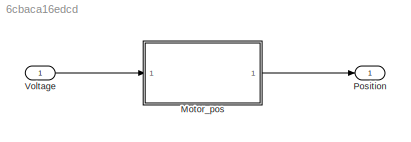
MODEL slx_6cbaca16edcd
KIND model
CONFIG AbsTol = auto
CONFIG EnableMultiTasking = off
CONFIG FixedStep = auto
CONFIG MaxStep = auto
CONFIG MinStep = auto
CONFIG PostLoadFcn = J=3.2284E-6;\nb=3.5077E-6;\nKe=0.0274;\nKt=0.0274;\nR=4;\nL=2.75E-6;
CONFIG RelTol = 1e-3
CONFIG SampleTimeConstraint = Unconstrained
CONFIG SolverName = ode45
CONFIG StartTime = 0.0
CONFIG StopTime = 10.0
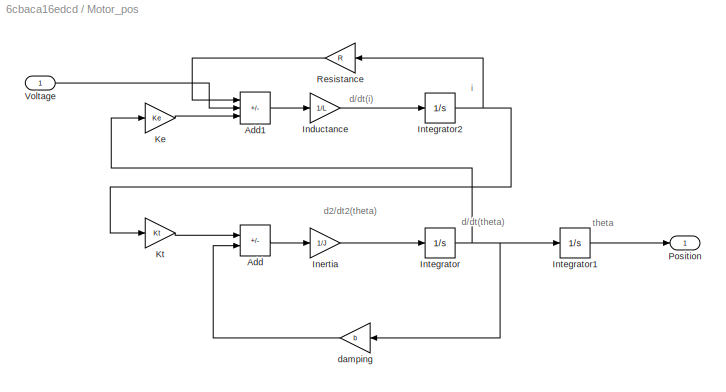
BLOCK [SubSystem] Motor_pos
  Ports = [1, 1]
  RequestExecContextInheritance = off
BLOCK [Sum] Motor_pos/Add
  IconShape = rectangular
  Inputs = +-
  Ports = [2, 1]
BLOCK [Sum] Motor_pos/Add1
  IconShape = rectangular
  Inputs = -+-
  Ports = [3, 1]
BLOCK [Gain] Motor_pos/Inductance
  Gain = 1/L
BLOCK [Gain] Motor_pos/Inertia
  Gain = 1/J
BLOCK [Integrator] Motor_pos/Integrator
  Ports = [1, 1]
BLOCK [Integrator] Motor_pos/Integrator1
  Ports = [1, 1]
BLOCK [Integrator] Motor_pos/Integrator2
  Ports = [1, 1]
BLOCK [Gain] Motor_pos/Ke
  Gain = Ke
BLOCK [Gain] Motor_pos/Kt
  Gain = Kt
BLOCK [Outport] Motor_pos/Position
BLOCK [Gain] Motor_pos/Resistance
  Gain = R
BLOCK [Inport] Motor_pos/Voltage
BLOCK [Gain] Motor_pos/damping
  Gain = b
BLOCK [Outport] Position
BLOCK [Inport] Voltage
ANNOTATION Motor_pos: d/dt(i)
ANNOTATION Motor_pos: d/dt(theta)
ANNOTATION Motor_pos: d2/dt2(theta)
ANNOTATION Motor_pos: i
ANNOTATION Motor_pos: theta
LINE Motor_pos/Add1:1 -> Motor_pos/Inductance:1
LINE Motor_pos/Add:1 -> Motor_pos/Inertia:1
LINE Motor_pos/Inductance:1 -> Motor_pos/Integrator2:1
LINE Motor_pos/Inertia:1 -> Motor_pos/Integrator:1
LINE Motor_pos/Integrator1:1 -> Motor_pos/Position:1
NET Motor_pos/Integrator2:1 -> Motor_pos/Kt:1, Motor_pos/Resistance:1
NET Motor_pos/Integrator:1 -> Motor_pos/Integrator1:1, Motor_pos/Ke:1, Motor_pos/damping:1
LINE Motor_pos/Ke:1 -> Motor_pos/Add1:3
LINE Motor_pos/Kt:1 -> Motor_pos/Add:1
LINE Motor_pos/Resistance:1 -> Motor_pos/Add1:1
LINE Motor_pos/Voltage:1 -> Motor_pos/Add1:2
LINE Motor_pos/damping:1 -> Motor_pos/Add:2
LINE Motor_pos:1 -> Position:1
LINE Voltage:1 -> Motor_pos:1
note: NET lines group one-source signal fan-out (src -> all destinations, sorted); 1:1 wires keep LINE
